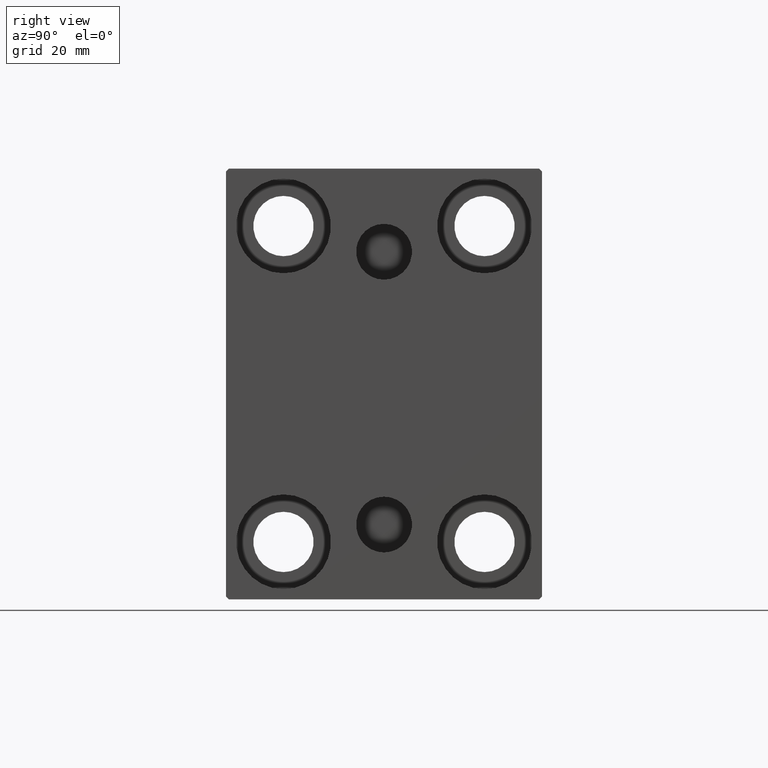
[diagram: clean part render]
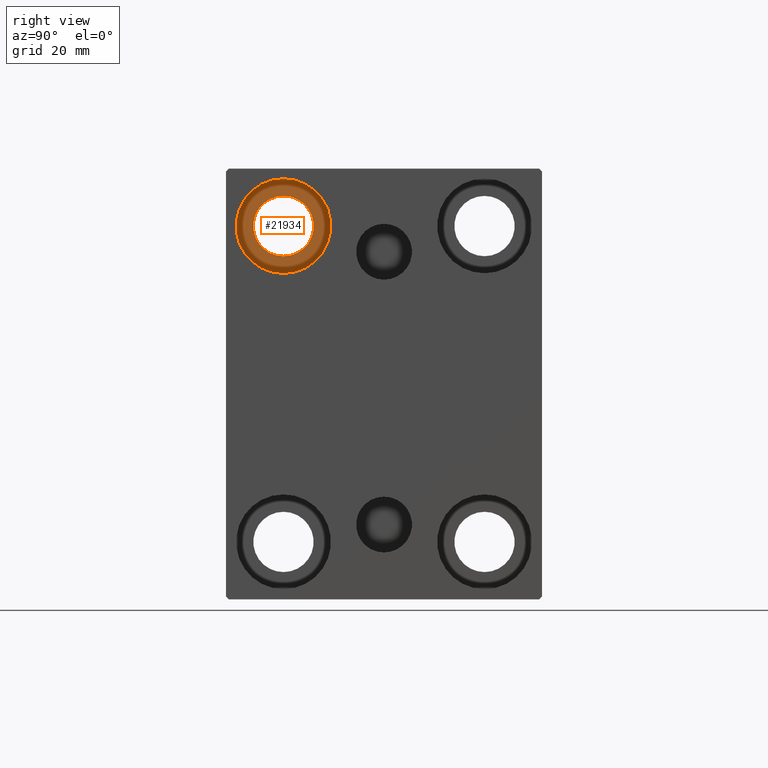
[diagram: same view with one face highlighted and labeled with its STEP entity id]
A machine part, right view. The second image highlights one B-rep face of the part: STEP entity #21934.
In plain terms, the highlighted planar face has unit normal (1, 0, 0).
Its self-contained STEP definition (entity closure, byte-faithful):
#254 = EDGE_CURVE ( 'NONE', #23562, #34731, #32528, .T. ) ;
#519 = DIRECTION ( 'NONE',  ( 0.000000000000000000, 0.000000000000000000, -1.000000000000000000 ) ) ;
#542 = DIRECTION ( 'NONE',  ( 0.000000000000000000, 0.000000000000000000, 1.000000000000000000 ) ) ;
#543 = CIRCLE ( 'NONE', #28020, 8.249999999999992895 ) ;
#2946 = CARTESIAN_POINT ( 'NONE',  ( 64.00000000000000000, -17.49999999999999645, 27.49999999999999645 ) ) ;
#3577 = DIRECTION ( 'NONE',  ( 0.000000000000000000, 0.000000000000000000, 1.000000000000000000 ) ) ;
#4076 = CARTESIAN_POINT ( 'NONE',  ( 64.00000000000000000, -17.49999999999999645, 27.49999999999999645 ) ) ;
#7124 = CARTESIAN_POINT ( 'NONE',  ( 64.00000000000000000, -17.49999999999999645, 32.74999999999999289 ) ) ;
#8099 = ORIENTED_EDGE ( 'NONE', *, *, #254, .T. ) ;
#8781 = CARTESIAN_POINT ( 'NONE',  ( 64.00000000000000000, -17.49999999999999645, 27.49999999999999645 ) ) ;
#8868 = VERTEX_POINT ( 'NONE', #22648 ) ;
#10442 = CIRCLE ( 'NONE', #35033, 8.249999999999992895 ) ;
#10943 = AXIS2_PLACEMENT_3D ( 'NONE', #40634, #41283, #519 ) ;
#11208 = EDGE_CURVE ( 'NONE', #34731, #23562, #17268, .T. ) ;
#13090 = DIRECTION ( 'NONE',  ( 0.000000000000000000, 0.000000000000000000, -1.000000000000000000 ) ) ;
#14053 = CARTESIAN_POINT ( 'NONE',  ( 64.00000000000000000, -17.49999999999999645, 19.25000000000000000 ) ) ;
#14370 = FACE_OUTER_BOUND ( 'NONE', #23752, .T. ) ;
#15387 = DIRECTION ( 'NONE',  ( -1.000000000000000000, -0.000000000000000000, -0.000000000000000000 ) ) ;
#16124 = AXIS2_PLACEMENT_3D ( 'NONE', #40596, #30256, #3577 ) ;
#17268 = CIRCLE ( 'NONE', #10943, 5.249999999999997335 ) ;
#19429 = EDGE_CURVE ( 'NONE', #8868, #26432, #10442, .T. ) ;
#21791 = DIRECTION ( 'NONE',  ( 0.000000000000000000, 0.000000000000000000, 1.000000000000000000 ) ) ;
#21934 = ADVANCED_FACE ( 'NONE', ( #14370, #24504 ), #23634, .T. ) ;
#22535 = EDGE_CURVE ( 'NONE', #26432, #8868, #543, .T. ) ;
#22648 = CARTESIAN_POINT ( 'NONE',  ( 64.00000000000000000, -17.49999999999999645, 35.74999999999999289 ) ) ;
#23562 = VERTEX_POINT ( 'NONE', #7124 ) ;
#23634 = PLANE ( 'NONE',  #16124 ) ;
#23691 = CARTESIAN_POINT ( 'NONE',  ( 64.00000000000000000, -17.49999999999999645, 22.25000000000000000 ) ) ;
#23752 = EDGE_LOOP ( 'NONE', ( #36239, #25111 ) ) ;
#24131 = DIRECTION ( 'NONE',  ( -1.000000000000000000, -0.000000000000000000, -0.000000000000000000 ) ) ;
#24504 = FACE_BOUND ( 'NONE', #42344, .T. ) ;
#25111 = ORIENTED_EDGE ( 'NONE', *, *, #19429, .F. ) ;
#26432 = VERTEX_POINT ( 'NONE', #14053 ) ;
#26905 = AXIS2_PLACEMENT_3D ( 'NONE', #2946, #43260, #13090 ) ;
#28020 = AXIS2_PLACEMENT_3D ( 'NONE', #4076, #24131, #542 ) ;
#30256 = DIRECTION ( 'NONE',  ( 1.000000000000000000, 0.000000000000000000, -0.000000000000000000 ) ) ;
#32528 = CIRCLE ( 'NONE', #26905, 5.249999999999997335 ) ;
#34731 = VERTEX_POINT ( 'NONE', #23691 ) ;
#35033 = AXIS2_PLACEMENT_3D ( 'NONE', #8781, #15387, #21791 ) ;
#36239 = ORIENTED_EDGE ( 'NONE', *, *, #22535, .F. ) ;
#40596 = CARTESIAN_POINT ( 'NONE',  ( 64.00000000000000000, 0.000000000000000000, 0.000000000000000000 ) ) ;
#40634 = CARTESIAN_POINT ( 'NONE',  ( 64.00000000000000000, -17.49999999999999645, 27.49999999999999645 ) ) ;
#41133 = ORIENTED_EDGE ( 'NONE', *, *, #11208, .T. ) ;
#41283 = DIRECTION ( 'NONE',  ( -1.000000000000000000, -0.000000000000000000, -0.000000000000000000 ) ) ;
#42344 = EDGE_LOOP ( 'NONE', ( #8099, #41133 ) ) ;
#43260 = DIRECTION ( 'NONE',  ( -1.000000000000000000, -0.000000000000000000, -0.000000000000000000 ) ) ;